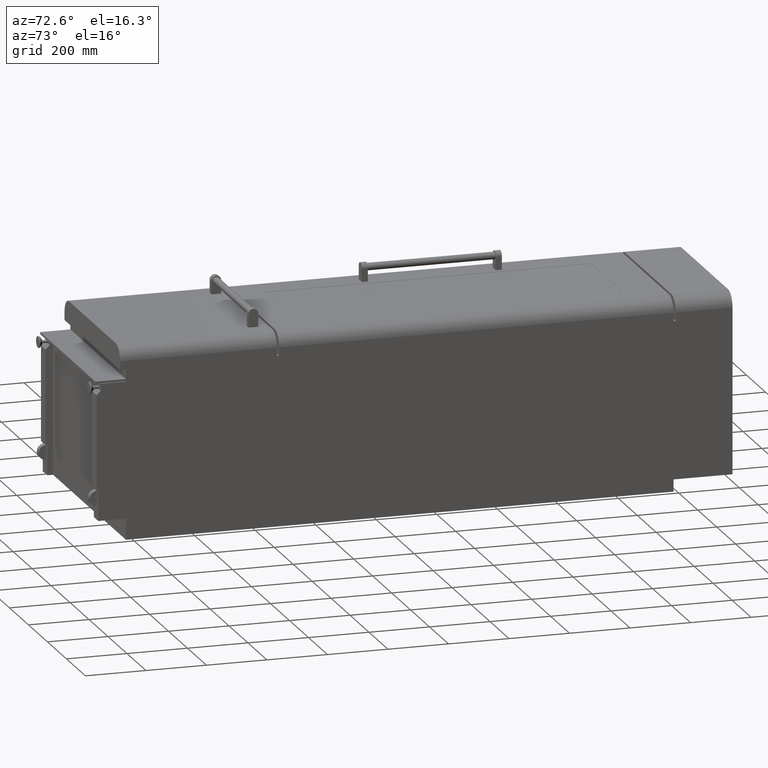
[diagram: clean part render]
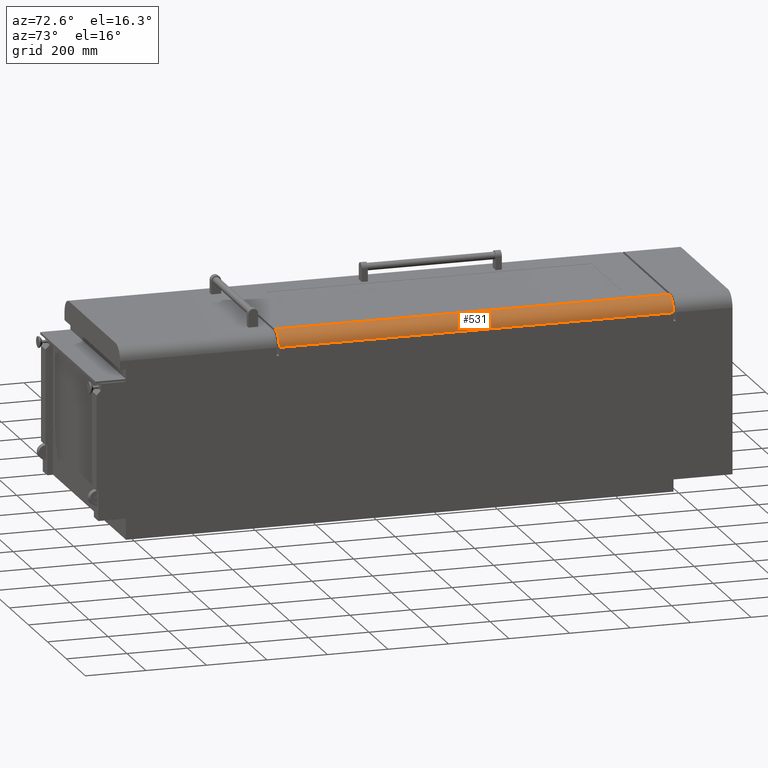
[diagram: same view with one face highlighted and labeled with its STEP entity id]
A machine part, auxiliary view. The second image highlights one B-rep face of the part: STEP entity #531.
In plain terms, the highlighted cylindrical surface (edge-blend (fillet) strip) has radius 47 mm, axis along (0, 1, 0).
Its self-contained STEP definition (entity closure, byte-faithful):
#360 = EDGE_CURVE ( 'NONE', #1229, #4153, #4986, .T. ) ;
#480 = CYLINDRICAL_SURFACE ( 'NONE', #4314, 47.00000000000001400 ) ;
#531 = ADVANCED_FACE ( 'NONE', ( #3583 ), #480, .T. ) ;
#604 = EDGE_CURVE ( 'NONE', #4153, #3330, #2008, .T. ) ;
#693 = DIRECTION ( 'NONE',  ( -0.0000000000000000000, 1.000000000000000000, -0.0000000000000000000 ) ) ;
#742 = CIRCLE ( 'NONE', #3600, 46.99999999999998600 ) ;
#1229 = VERTEX_POINT ( 'NONE', #2802 ) ;
#1381 = EDGE_CURVE ( 'NONE', #3330, #1502, #742, .T. ) ;
#1399 = DIRECTION ( 'NONE',  ( 4.260257193496379900E-017, 1.000000000000000000, 0.0000000000000000000 ) ) ;
#1502 = VERTEX_POINT ( 'NONE', #5028 ) ;
#1507 = DIRECTION ( 'NONE',  ( -1.000000000000000000, 4.260257193496378000E-017, 0.0000000000000000000 ) ) ;
#1717 = VECTOR ( 'NONE', #1399, 1000.000000000000000 ) ;
#1861 = CARTESIAN_POINT ( 'NONE',  ( 245.9999999999999400, -349.6499999999998600, 308.0000000000001100 ) ) ;
#1937 = CARTESIAN_POINT ( 'NONE',  ( 245.9999999999999700, -1.048023269600109300E-014, 308.0000000000001100 ) ) ;
#2008 = LINE ( 'NONE', #2342, #2464 ) ;
#2212 = EDGE_LOOP ( 'NONE', ( #4048, #4375, #3499, #5167 ) ) ;
#2259 = AXIS2_PLACEMENT_3D ( 'NONE', #3091, #693, #2753 ) ;
#2276 = DIRECTION ( 'NONE',  ( 9.472892701579838100E-017, -1.000000000000000000, -0.0000000000000000000 ) ) ;
#2342 = CARTESIAN_POINT ( 'NONE',  ( 292.9999999999999400, -349.6499999999998600, 308.0000000000001100 ) ) ;
#2464 = VECTOR ( 'NONE', #3468, 1000.000000000000000 ) ;
#2543 = CARTESIAN_POINT ( 'NONE',  ( 292.9999999999999400, -349.6499999999998600, 308.0000000000001100 ) ) ;
#2753 = DIRECTION ( 'NONE',  ( 1.771632486103973700E-015, 0.0000000000000000000, -1.000000000000000000 ) ) ;
#2802 = CARTESIAN_POINT ( 'NONE',  ( 245.9999999999999400, 953.3500000000001400, 355.0000000000001100 ) ) ;
#3029 = CARTESIAN_POINT ( 'NONE',  ( 245.9999999999999700, -1.048023269600109300E-014, 355.0000000000001100 ) ) ;
#3091 = CARTESIAN_POINT ( 'NONE',  ( 246.0000000000000000, 953.3500000000001400, 308.0000000000001100 ) ) ;
#3330 = VERTEX_POINT ( 'NONE', #2543 ) ;
#3468 = DIRECTION ( 'NONE',  ( -4.260257193496379900E-017, -1.000000000000000000, -0.0000000000000000000 ) ) ;
#3499 = ORIENTED_EDGE ( 'NONE', *, *, #360, .F. ) ;
#3583 = FACE_OUTER_BOUND ( 'NONE', #2212, .T. ) ;
#3600 = AXIS2_PLACEMENT_3D ( 'NONE', #1861, #2276, #5089 ) ;
#3861 = CARTESIAN_POINT ( 'NONE',  ( 293.0000000000000000, 953.3500000000001400, 308.0000000000001100 ) ) ;
#3882 = DIRECTION ( 'NONE',  ( 4.260257193496379900E-017, 1.000000000000000000, 0.0000000000000000000 ) ) ;
#3989 = EDGE_CURVE ( 'NONE', #1502, #1229, #4173, .T. ) ;
#4048 = ORIENTED_EDGE ( 'NONE', *, *, #1381, .F. ) ;
#4153 = VERTEX_POINT ( 'NONE', #3861 ) ;
#4173 = LINE ( 'NONE', #3029, #1717 ) ;
#4314 = AXIS2_PLACEMENT_3D ( 'NONE', #1937, #3882, #1507 ) ;
#4375 = ORIENTED_EDGE ( 'NONE', *, *, #604, .F. ) ;
#4986 = CIRCLE ( 'NONE', #2259, 46.99999999999998600 ) ;
#5028 = CARTESIAN_POINT ( 'NONE',  ( 245.9999999999999400, -349.6499999999998600, 355.0000000000001100 ) ) ;
#5089 = DIRECTION ( 'NONE',  ( -1.000000000000000000, 0.0000000000000000000, 0.0000000000000000000 ) ) ;
#5167 = ORIENTED_EDGE ( 'NONE', *, *, #3989, .F. ) ;